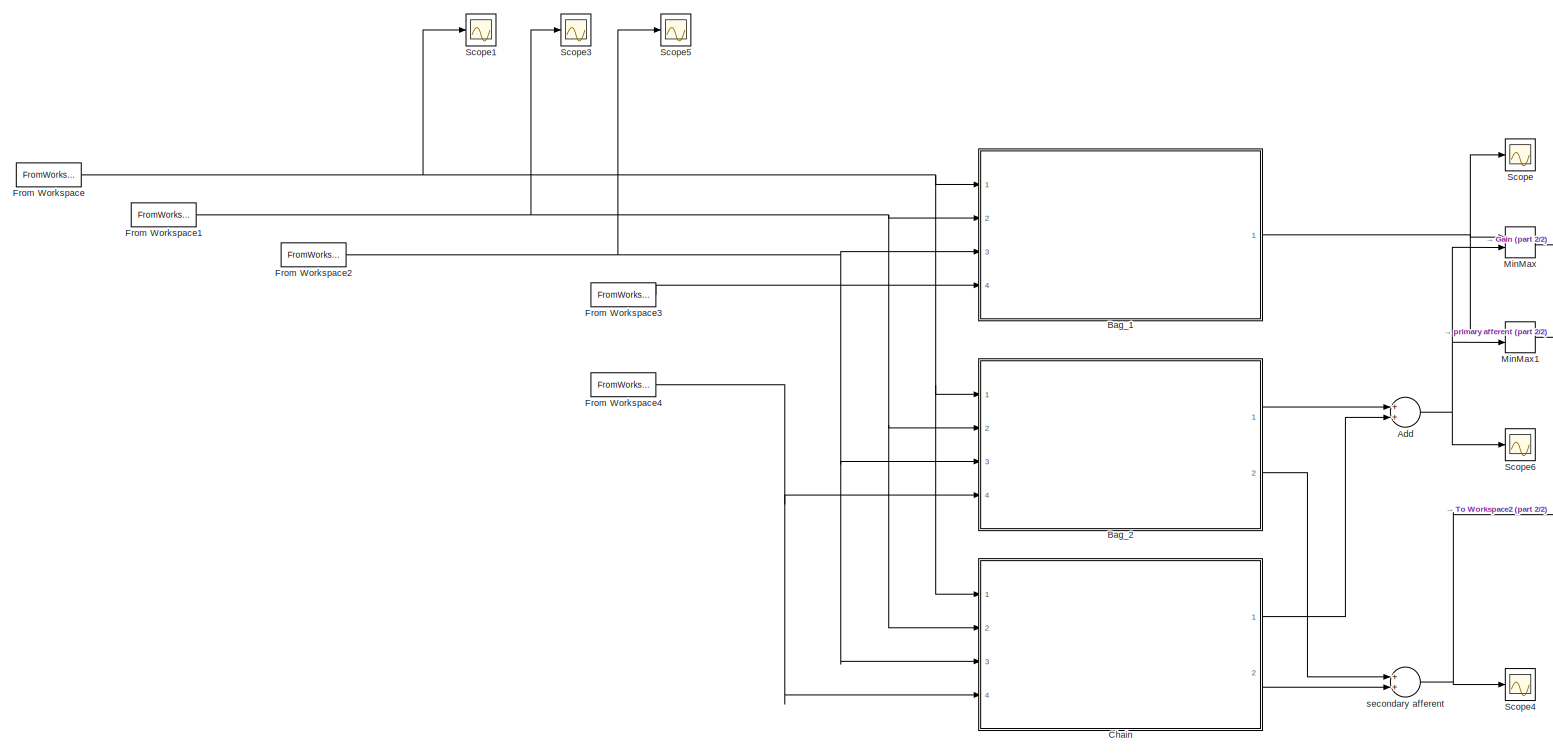
[diagram: root canvas - part 1/2, most of the canvas]
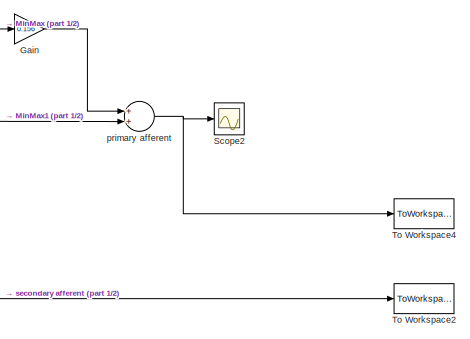
[diagram: root canvas - part 2/2, middle right region]
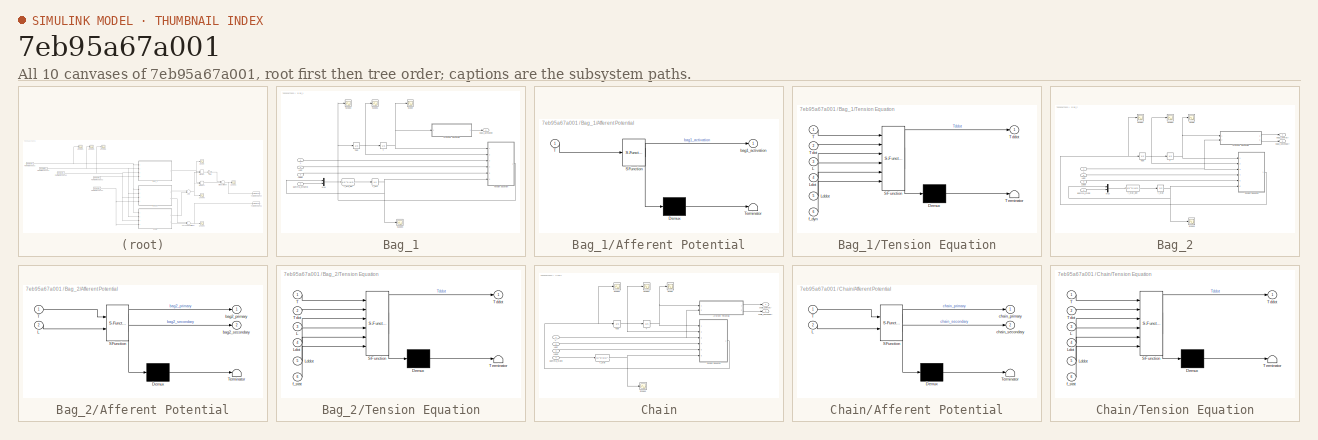
[diagram: thumbnail index - all 10 canvases of the model, root first then tree order]
MODEL slx_7eb95a67a001
KIND model
CONFIG AbsTol = auto
CONFIG EnableMultiTasking = on
CONFIG FixedStep = 0.001
CONFIG MaxStep = auto
CONFIG MinStep = auto
CONFIG RelTol = 1e-3
CONFIG SampleTimeConstraint = Unconstrained
CONFIG Solver = FixedStepAuto
CONFIG SolverName = FixedStepAuto
CONFIG StartTime = 0
CONFIG StopTime = 10
BLOCK [Sum] Add
  InputSameDT = off
  OutDataTypeStr = Inherit: Inherit via internal rule
  Ports = [2, 1]
  SaturateOnIntegerOverflow = off
BLOCK [SubSystem] Bag_1
  Ports = [4, 1]
  RequestExecContextInheritance = off
  Variant = off
BLOCK [SubSystem] Bag_1/Afferent Potential
  ErrorFcn = Stateflow.Translate.translate
  PermitHierarchicalResolution = ExplicitOnly
  Ports = [1, 1]
  RequestExecContextInheritance = off
  SFBlockType = MATLAB Function
  TreatAsAtomicUnit = on
  Variant = off
BLOCK [Demux] Bag_1/Afferent Potential/ Demux 
  Outputs = 1
  Ports = [1, 1]
BLOCK [S-Function] Bag_1/Afferent Potential/ SFunction 
  EnableBusSupport = on
  FunctionName = sf_sfun
  PortCounts = [1 2]
  Ports = [1, 2]
  SFcnIsStateOwnerBlock = off
  SFunctionDeploymentMode = off
  Tag = Stateflow S-Function spindle_model 1
BLOCK [Terminator] Bag_1/Afferent Potential/ Terminator 
BLOCK [Inport] Bag_1/Afferent Potential/T
  IconDisplay = Port number
BLOCK [Outport] Bag_1/Afferent Potential/bag1_activation
  IconDisplay = Port number
BLOCK [Inport] Bag_1/L
  IconDisplay = Port number
BLOCK [Inport] Bag_1/Lddot
  IconDisplay = Port number
  Port = 3
BLOCK [Inport] Bag_1/Ldot
  IconDisplay = Port number
  Port = 2
BLOCK [Mux] Bag_1/Mux
  DisplayOption = bar
  Inputs = 2
  Ports = [2, 1]
BLOCK [Scope] Bag_1/Scope
  NumInputPorts = 1
  Ports = [1]
  ScopeSpecificationString = Simulink.scopes.TimeScopeBlockCfg('CurrentConfiguration', extmgr.ConfigurationSet(extmgr.Configuration('Core','General UI',true),extmgr.Configuration('Core','Source UI',true),extmgr.Configuration('Sources','WiredSimulink',true,'DataLoggingVariableName','ScopeData3'),extmgr.Configuration('Visuals','Time Domain',true,'SerializedDisplays',{struct('MinYLimReal','-0.0141','MaxYLimReal','0.12692','YLabe...<+1385ch>
BLOCK [Scope] Bag_1/Scope1
  NumInputPorts = 1
  Ports = [1]
  ScopeSpecificationString = Simulink.scopes.TimeScopeBlockCfg('CurrentConfiguration', extmgr.ConfigurationSet(extmgr.Configuration('Core','General UI',true),extmgr.Configuration('Core','Source UI',true),extmgr.Configuration('Sources','WiredSimulink',true,'DataLoggingVariableName','ScopeData1'),extmgr.Configuration('Visuals','Time Domain',true,'SerializedDisplays',{struct('MinYLimReal','-0.1269','MaxYLimReal','0.13059','YLabe...<+1407ch>
BLOCK [Scope] Bag_1/Scope2
  NumInputPorts = 1
  Ports = [1]
  ScopeSpecificationString = Simulink.scopes.TimeScopeBlockCfg('CurrentConfiguration', extmgr.ConfigurationSet(extmgr.Configuration('Core','General UI',true),extmgr.Configuration('Core','Source UI',true),extmgr.Configuration('Sources','WiredSimulink',true,'DataLoggingVariableName','ScopeData2'),extmgr.Configuration('Visuals','Time Domain',true,'SerializedDisplays',{struct('MinYLimReal','-1592.22082','MaxYLimReal','1591.12849'...<+1443ch>
BLOCK [Scope] Bag_1/Scope3
  NumInputPorts = 1
  Ports = [1]
  ScopeSpecificationString = Simulink.scopes.TimeScopeBlockCfg('CurrentConfiguration', extmgr.ConfigurationSet(extmgr.Configuration('Core','General UI',true),extmgr.Configuration('Core','Source UI',true),extmgr.Configuration('Sources','WiredSimulink',true,'DataLoggingVariableName','ScopeData1'),extmgr.Configuration('Visuals','Time Domain',true,'SerializedDisplays',{struct('MinYLimReal','-0.11172','MaxYLimReal','1.00548','YLab...<+1393ch>
BLOCK [Integrator] Bag_1/T
  Ports = [1, 1]
BLOCK [Integrator] Bag_1/Tdot
  Ports = [1, 1]
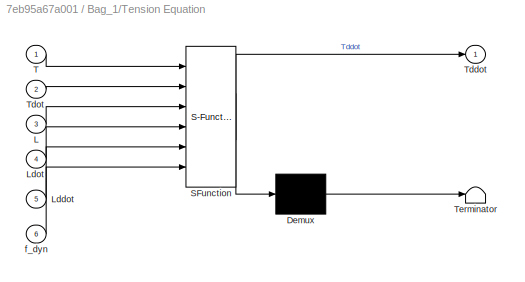
BLOCK [SubSystem] Bag_1/Tension Equation
  ErrorFcn = Stateflow.Translate.translate
  PermitHierarchicalResolution = ExplicitOnly
  Ports = [6, 1]
  RequestExecContextInheritance = off
  SFBlockType = MATLAB Function
  TreatAsAtomicUnit = on
  Variant = off
BLOCK [Demux] Bag_1/Tension Equation/ Demux 
  Outputs = 1
  Ports = [1, 1]
BLOCK [S-Function] Bag_1/Tension Equation/ SFunction 
  EnableBusSupport = on
  FunctionName = sf_sfun
  PortCounts = [6 2]
  Ports = [6, 2]
  SFcnIsStateOwnerBlock = off
  SFunctionDeploymentMode = off
  Tag = Stateflow S-Function spindle_model 2
BLOCK [Terminator] Bag_1/Tension Equation/ Terminator 
BLOCK [Inport] Bag_1/Tension Equation/L
  IconDisplay = Port number
  Port = 3
BLOCK [Inport] Bag_1/Tension Equation/Lddot
  IconDisplay = Port number
  Port = 5
BLOCK [Inport] Bag_1/Tension Equation/Ldot
  IconDisplay = Port number
  Port = 4
BLOCK [Inport] Bag_1/Tension Equation/T
  IconDisplay = Port number
BLOCK [Outport] Bag_1/Tension Equation/Tddot
  IconDisplay = Port number
BLOCK [Inport] Bag_1/Tension Equation/Tdot
  IconDisplay = Port number
  Port = 2
BLOCK [Inport] Bag_1/Tension Equation/f_dyn
  IconDisplay = Port number
  Port = 6
BLOCK [Outport] Bag_1/bag1_activation
  IconDisplay = Port number
BLOCK [Integrator] Bag_1/f_dyn
  Ports = [1, 1]
BLOCK [Fcn] Bag_1/f_dyn_dot
  Expr = (u(2)^2/(u(2)^2+60^2) - u(1))/0.149
BLOCK [Inport] Bag_1/gamma_dynamic
  IconDisplay = Port number
  Port = 4
BLOCK [SubSystem] Bag_2
  Ports = [4, 2]
  RequestExecContextInheritance = off
  Variant = off
BLOCK [SubSystem] Bag_2/Afferent Potential
  ErrorFcn = Stateflow.Translate.translate
  PermitHierarchicalResolution = ExplicitOnly
  Ports = [2, 2]
  RequestExecContextInheritance = off
  SFBlockType = MATLAB Function
  TreatAsAtomicUnit = on
  Variant = off
BLOCK [Demux] Bag_2/Afferent Potential/ Demux 
  Outputs = 1
  Ports = [1, 1]
BLOCK [S-Function] Bag_2/Afferent Potential/ SFunction 
  EnableBusSupport = on
  FunctionName = sf_sfun
  PortCounts = [2 3]
  Ports = [2, 3]
  SFcnIsStateOwnerBlock = off
  SFunctionDeploymentMode = off
  Tag = Stateflow S-Function spindle_model 3
BLOCK [Terminator] Bag_2/Afferent Potential/ Terminator 
BLOCK [Inport] Bag_2/Afferent Potential/L
  IconDisplay = Port number
  Port = 2
BLOCK [Inport] Bag_2/Afferent Potential/T
  IconDisplay = Port number
BLOCK [Outport] Bag_2/Afferent Potential/bag2_primary
  IconDisplay = Port number
BLOCK [Outport] Bag_2/Afferent Potential/bag2_secondary
  IconDisplay = Port number
  Port = 2
BLOCK [Inport] Bag_2/L
  IconDisplay = Port number
BLOCK [Inport] Bag_2/Lddot
  IconDisplay = Port number
  Port = 3
BLOCK [Inport] Bag_2/Ldot
  IconDisplay = Port number
  Port = 2
BLOCK [Mux] Bag_2/Mux
  DisplayOption = bar
  Inputs = 2
  Ports = [2, 1]
BLOCK [Scope] Bag_2/Scope
  NumInputPorts = 1
  Ports = [1]
  ScopeSpecificationString = Simulink.scopes.TimeScopeBlockCfg('CurrentConfiguration', extmgr.ConfigurationSet(extmgr.Configuration('Core','General UI',true),extmgr.Configuration('Core','Source UI',true),extmgr.Configuration('Sources','WiredSimulink',true,'DataLoggingVariableName','ScopeData3'),extmgr.Configuration('Visuals','Time Domain',true,'SerializedDisplays',{struct('MinYLimReal','0.07054','MaxYLimReal','0.09193','YLabe...<+1433ch>
BLOCK [Scope] Bag_2/Scope1
  NumInputPorts = 1
  Ports = [1]
  ScopeSpecificationString = Simulink.scopes.TimeScopeBlockCfg('CurrentConfiguration', extmgr.ConfigurationSet(extmgr.Configuration('Core','General UI',true),extmgr.Configuration('Core','Source UI',true),extmgr.Configuration('Sources','WiredSimulink',true,'DataLoggingVariableName','ScopeData4'),extmgr.Configuration('Visuals','Time Domain',true,'SerializedDisplays',{struct('MinYLimReal','-141.9745','MaxYLimReal','59.31914','YL...<+1402ch>
BLOCK [Scope] Bag_2/Scope2
  NumInputPorts = 1
  Ports = [1]
  ScopeSpecificationString = Simulink.scopes.TimeScopeBlockCfg('CurrentConfiguration', extmgr.ConfigurationSet(extmgr.Configuration('Core','General UI',true),extmgr.Configuration('Core','Source UI',true),extmgr.Configuration('Sources','WiredSimulink',true,'DataLoggingVariableName','ScopeData5'),extmgr.Configuration('Visuals','Time Domain',true,'SerializedDisplays',{struct('MinYLimReal','-0.39242','MaxYLimReal','3.43233','YLab...<+1363ch>
BLOCK [Scope] Bag_2/Scope3
  NumInputPorts = 1
  Ports = [1]
  ScopeSpecificationString = Simulink.scopes.TimeScopeBlockCfg('CurrentConfiguration', extmgr.ConfigurationSet(extmgr.Configuration('Core','General UI',true),extmgr.Configuration('Core','Source UI',true),extmgr.Configuration('Sources','WiredSimulink',true,'DataLoggingVariableName','ScopeData9'),extmgr.Configuration('Visuals','Time Domain',true,'SerializedDisplays',{struct('MinYLimReal','-0.089','MaxYLimReal','0.801','YLabelRe...<+1428ch>
BLOCK [Integrator] Bag_2/T
  Ports = [1, 1]
BLOCK [Integrator] Bag_2/Tdot
  Ports = [1, 1]
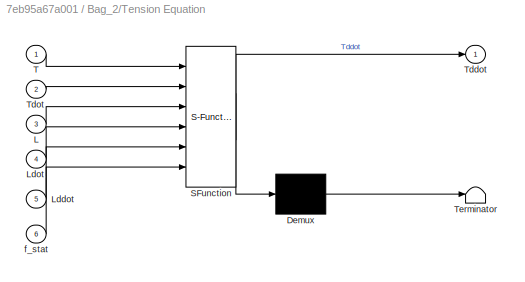
BLOCK [SubSystem] Bag_2/Tension Equation
  ErrorFcn = Stateflow.Translate.translate
  PermitHierarchicalResolution = ExplicitOnly
  Ports = [6, 1]
  RequestExecContextInheritance = off
  SFBlockType = MATLAB Function
  TreatAsAtomicUnit = on
  Variant = off
BLOCK [Demux] Bag_2/Tension Equation/ Demux 
  Outputs = 1
  Ports = [1, 1]
BLOCK [S-Function] Bag_2/Tension Equation/ SFunction 
  EnableBusSupport = on
  FunctionName = sf_sfun
  PortCounts = [6 2]
  Ports = [6, 2]
  SFcnIsStateOwnerBlock = off
  SFunctionDeploymentMode = off
  Tag = Stateflow S-Function spindle_model 4
BLOCK [Terminator] Bag_2/Tension Equation/ Terminator 
BLOCK [Inport] Bag_2/Tension Equation/L
  IconDisplay = Port number
  Port = 3
BLOCK [Inport] Bag_2/Tension Equation/Lddot
  IconDisplay = Port number
  Port = 5
BLOCK [Inport] Bag_2/Tension Equation/Ldot
  IconDisplay = Port number
  Port = 4
BLOCK [Inport] Bag_2/Tension Equation/T
  IconDisplay = Port number
BLOCK [Outport] Bag_2/Tension Equation/Tddot
  IconDisplay = Port number
BLOCK [Inport] Bag_2/Tension Equation/Tdot
  IconDisplay = Port number
  Port = 2
BLOCK [Inport] Bag_2/Tension Equation/f_stat
  IconDisplay = Port number
  Port = 6
BLOCK [Outport] Bag_2/bag2_primary
  IconDisplay = Port number
BLOCK [Outport] Bag_2/bag2_secondary
  IconDisplay = Port number
  Port = 2
BLOCK [Integrator] Bag_2/f_stat
  Ports = [1, 1]
BLOCK [Fcn] Bag_2/f_stat_dot
  Expr = (u(2)^2/(u(2)^2+60^2) - u(1))/0.205
BLOCK [Inport] Bag_2/gamma_static
  IconDisplay = Port number
  Port = 4
BLOCK [SubSystem] Chain
  Ports = [4, 2]
  RequestExecContextInheritance = off
  Variant = off
BLOCK [SubSystem] Chain/Afferent Potential
  ErrorFcn = Stateflow.Translate.translate
  PermitHierarchicalResolution = ExplicitOnly
  Ports = [2, 2]
  RequestExecContextInheritance = off
  SFBlockType = MATLAB Function
  TreatAsAtomicUnit = on
  Variant = off
BLOCK [Demux] Chain/Afferent Potential/ Demux 
  Outputs = 1
  Ports = [1, 1]
BLOCK [S-Function] Chain/Afferent Potential/ SFunction 
  EnableBusSupport = on
  FunctionName = sf_sfun
  PortCounts = [2 3]
  Ports = [2, 3]
  SFcnIsStateOwnerBlock = off
  SFunctionDeploymentMode = off
  Tag = Stateflow S-Function spindle_model 5
BLOCK [Terminator] Chain/Afferent Potential/ Terminator 
BLOCK [Inport] Chain/Afferent Potential/L
  IconDisplay = Port number
  Port = 2
BLOCK [Inport] Chain/Afferent Potential/T
  IconDisplay = Port number
BLOCK [Outport] Chain/Afferent Potential/chain_primary
  IconDisplay = Port number
BLOCK [Outport] Chain/Afferent Potential/chain_secondary
  IconDisplay = Port number
  Port = 2
BLOCK [Inport] Chain/L
  IconDisplay = Port number
BLOCK [Inport] Chain/Lddot
  IconDisplay = Port number
  Port = 3
BLOCK [Inport] Chain/Ldot
  IconDisplay = Port number
  Port = 2
BLOCK [Scope] Chain/Scope
  NumInputPorts = 1
  Ports = [1]
  ScopeSpecificationString = Simulink.scopes.TimeScopeBlockCfg('CurrentConfiguration', extmgr.ConfigurationSet(extmgr.Configuration('Core','General UI',true),extmgr.Configuration('Core','Source UI',true),extmgr.Configuration('Sources','WiredSimulink',true,'DataLoggingVariableName','ScopeData6'),extmgr.Configuration('Visuals','Time Domain',true,'SerializedDisplays',{struct('MinYLimReal','-0.01285','MaxYLimReal','0.11563','YLab...<+1360ch>
BLOCK [Scope] Chain/Scope1
  NumInputPorts = 1
  Ports = [1]
  ScopeSpecificationString = Simulink.scopes.TimeScopeBlockCfg('CurrentConfiguration', extmgr.ConfigurationSet(extmgr.Configuration('Core','General UI',true),extmgr.Configuration('Core','Source UI',true),extmgr.Configuration('Sources','WiredSimulink',true,'DataLoggingVariableName','ScopeData7'),extmgr.Configuration('Visuals','Time Domain',true,'SerializedDisplays',{struct('MinYLimReal','-3220.47835','MaxYLimReal','4033.73453'...<+1397ch>
BLOCK [Scope] Chain/Scope2
  NumInputPorts = 1
  Ports = [1]
  ScopeSpecificationString = Simulink.scopes.TimeScopeBlockCfg('CurrentConfiguration', extmgr.ConfigurationSet(extmgr.Configuration('Core','General UI',true),extmgr.Configuration('Core','Source UI',true),extmgr.Configuration('Sources','WiredSimulink',true,'DataLoggingVariableName','ScopeData8'),extmgr.Configuration('Visuals','Time Domain',true,'SerializedDisplays',{struct('MinYLimReal','-7.67145','MaxYLimReal','13.97779','YLa...<+1367ch>
BLOCK [Scope] Chain/Scope3
  NumInputPorts = 1
  Ports = [1]
  ScopeSpecificationString = Simulink.scopes.TimeScopeBlockCfg('CurrentConfiguration', extmgr.ConfigurationSet(extmgr.Configuration('Core','General UI',true),extmgr.Configuration('Core','Source UI',true),extmgr.Configuration('Sources','WiredSimulink',true,'DataLoggingVariableName','ScopeData10'),extmgr.Configuration('Visuals','Time Domain',true,'SerializedDisplays',{struct('MinYLimReal','0.24002','MaxYLimReal','0.55889','YLab...<+1364ch>
BLOCK [Integrator] Chain/T
  Ports = [1, 1]
BLOCK [Integrator] Chain/Tdot
  Ports = [1, 1]
BLOCK [SubSystem] Chain/Tension Equation
  ErrorFcn = Stateflow.Translate.translate
  PermitHierarchicalResolution = ExplicitOnly
  Ports = [6, 1]
  RequestExecContextInheritance = off
  SFBlockType = MATLAB Function
  TreatAsAtomicUnit = on
  Variant = off
BLOCK [Demux] Chain/Tension Equation/ Demux 
  Outputs = 1
  Ports = [1, 1]
BLOCK [S-Function] Chain/Tension Equation/ SFunction 
  EnableBusSupport = on
  FunctionName = sf_sfun
  PortCounts = [6 2]
  Ports = [6, 2]
  SFcnIsStateOwnerBlock = off
  SFunctionDeploymentMode = off
  Tag = Stateflow S-Function spindle_model 6
BLOCK [Terminator] Chain/Tension Equation/ Terminator 
BLOCK [Inport] Chain/Tension Equation/L
  IconDisplay = Port number
  Port = 3
BLOCK [Inport] Chain/Tension Equation/Lddot
  IconDisplay = Port number
  Port = 5
BLOCK [Inport] Chain/Tension Equation/Ldot
  IconDisplay = Port number
  Port = 4
BLOCK [Inport] Chain/Tension Equation/T
  IconDisplay = Port number
BLOCK [Outport] Chain/Tension Equation/Tddot
  IconDisplay = Port number
BLOCK [Inport] Chain/Tension Equation/Tdot
  IconDisplay = Port number
  Port = 2
BLOCK [Inport] Chain/Tension Equation/f_stat
  IconDisplay = Port number
  Port = 6
BLOCK [Outport] Chain/chain_primary
  IconDisplay = Port number
BLOCK [Outport] Chain/chain_secondary
  IconDisplay = Port number
  Port = 2
BLOCK [Fcn] Chain/f_stat
  Expr = u(1)^2/(u(1)^2+90^2)
BLOCK [Inport] Chain/gamma_static
  IconDisplay = Port number
  Port = 4
BLOCK [FromWorkspace] From Workspace
  SampleTime = 0
  VariableName = L
  ZeroCross = on
BLOCK [FromWorkspace] From Workspace1
  SampleTime = 0
  VariableName = Ldot
  ZeroCross = on
BLOCK [FromWorkspace] From Workspace2
  SampleTime = 0
  VariableName = Lddot
  ZeroCross = on
BLOCK [FromWorkspace] From Workspace3
  SampleTime = 0
  VariableName = gamma_dyn
  ZeroCross = on
BLOCK [FromWorkspace] From Workspace4
  SampleTime = 0
  VariableName = gamma_stat
  ZeroCross = on
BLOCK [Gain] Gain
  Gain = 0.156
  OutDataTypeStr = Inherit: Inherit via internal rule
  ParamDataTypeStr = Inherit: Inherit via internal rule
  SaturateOnIntegerOverflow = off
BLOCK [MinMax] MinMax
  InputSameDT = off
  Inputs = 2
  Ports = [2, 1]
  SaturateOnIntegerOverflow = off
BLOCK [MinMax] MinMax1
  Function = max
  InputSameDT = off
  Inputs = 2
  Ports = [2, 1]
  SaturateOnIntegerOverflow = off
BLOCK [Scope] Scope
  NumInputPorts = 1
  Ports = [1]
  ScopeSpecificationString = Simulink.scopes.TimeScopeBlockCfg('CurrentConfiguration', extmgr.ConfigurationSet(extmgr.Configuration('Core','General UI',true),extmgr.Configuration('Core','Source UI',true),extmgr.Configuration('Sources','WiredSimulink',true,'DataLoggingVariableName','ScopeData1'),extmgr.Configuration('Visuals','Time Domain',true,'SerializedDisplays',{struct('MinYLimReal','-72.95088','MaxYLimReal','196.55792','Y...<+1403ch>
BLOCK [Scope] Scope1
  NumInputPorts = 1
  Ports = [1]
  ScopeSpecificationString = Simulink.scopes.TimeScopeBlockCfg('CurrentConfiguration', extmgr.ConfigurationSet(extmgr.Configuration('Core','General UI',true),extmgr.Configuration('Core','Source UI',true),extmgr.Configuration('Sources','WiredSimulink',true,'DataLoggingVariableName','ScopeData2'),extmgr.Configuration('Visuals','Time Domain',true,'SerializedDisplays',{struct('MinYLimReal','0.7875','MaxYLimReal','1.1125','YLabelR...<+1363ch>
BLOCK [Scope] Scope2
  NumInputPorts = 1
  Ports = [1]
  ScopeSpecificationString = Simulink.scopes.TimeScopeBlockCfg('CurrentConfiguration', extmgr.ConfigurationSet(extmgr.Configuration('Core','General UI',true),extmgr.Configuration('Core','Source UI',true),extmgr.Configuration('Sources','WiredSimulink',true,'DataLoggingVariableName','ScopeData5'),extmgr.Configuration('Visuals','Time Domain',true,'SerializedDisplays',{struct('MinYLimReal','-82.77474','MaxYLimReal','213.21262','Y...<+1412ch>
BLOCK [Scope] Scope3
  NumInputPorts = 1
  Ports = [1]
  ScopeSpecificationString = Simulink.scopes.TimeScopeBlockCfg('CurrentConfiguration', extmgr.ConfigurationSet(extmgr.Configuration('Core','General UI',true),extmgr.Configuration('Core','Source UI',true),extmgr.Configuration('Sources','WiredSimulink',true,'DataLoggingVariableName','ScopeData3'),extmgr.Configuration('Visuals','Time Domain',true,'SerializedDisplays',{struct('MinYLimReal','-1.02102','MaxYLimReal','1.02102','YLab...<+1374ch>
BLOCK [Scope] Scope4
  NumInputPorts = 1
  Ports = [1]
  ScopeSpecificationString = Simulink.scopes.TimeScopeBlockCfg('CurrentConfiguration', extmgr.ConfigurationSet(extmgr.Configuration('Core','General UI',true),extmgr.Configuration('Core','Source UI',true),extmgr.Configuration('Sources','WiredSimulink',true,'DataLoggingVariableName','ScopeData6'),extmgr.Configuration('Visuals','Time Domain',true,'SerializedDisplays',{struct('MinYLimReal','-70.49475','MaxYLimReal','135.10667','Y...<+1387ch>
BLOCK [Scope] Scope5
  NumInputPorts = 1
  Ports = [1]
  ScopeSpecificationString = Simulink.scopes.TimeScopeBlockCfg('CurrentConfiguration', extmgr.ConfigurationSet(extmgr.Configuration('Core','General UI',true),extmgr.Configuration('Core','Source UI',true),extmgr.Configuration('Sources','WiredSimulink',true,'DataLoggingVariableName','ScopeData4'),extmgr.Configuration('Visuals','Time Domain',true,'SerializedDisplays',{struct('MinYLimReal','-0.01564','MaxYLimReal','0.01564','YLab...<+1374ch>
BLOCK [Scope] Scope6
  NumInputPorts = 1
  Ports = [1]
  ScopeSpecificationString = Simulink.scopes.TimeScopeBlockCfg('CurrentConfiguration', extmgr.ConfigurationSet(extmgr.Configuration('Core','General UI',true),extmgr.Configuration('Core','Source UI',true),extmgr.Configuration('Sources','WiredSimulink',true,'DataLoggingVariableName','ScopeData2'),extmgr.Configuration('Visuals','Time Domain',true,'SerializedDisplays',{struct('MinYLimReal','-68.01432','MaxYLimReal','152.12885','Y...<+1401ch>
BLOCK [ToWorkspace] To Workspace2
  FixptAsFi = on
  MaxDataPoints = inf
  Ports = [1]
  SampleTime = -1
  Save2DSignal = 3-D array (concatenate along third dimension)
  SaveFormat = Timeseries
  VariableName = secondary_afferent
BLOCK [ToWorkspace] To Workspace4
  FixptAsFi = on
  MaxDataPoints = inf
  Ports = [1]
  SampleTime = -1
  Save2DSignal = 3-D array (concatenate along third dimension)
  SaveFormat = Timeseries
  VariableName = primary_afferent
BLOCK [Sum] primary afferent
  InputSameDT = off
  OutDataTypeStr = Inherit: Inherit via internal rule
  Ports = [2, 1]
  SaturateOnIntegerOverflow = off
BLOCK [Sum] secondary afferent
  InputSameDT = off
  OutDataTypeStr = Inherit: Inherit via internal rule
  Ports = [2, 1]
  SaturateOnIntegerOverflow = off
NET Add:1 -> MinMax1:2, MinMax:2, Scope6:1
LINE Bag_1/Afferent Potential:1 -> Bag_1/bag1_activation:1
LINE Bag_1/L:1 -> Bag_1/Tension Equation:3
LINE Bag_1/Lddot:1 -> Bag_1/Tension Equation:5
LINE Bag_1/Ldot:1 -> Bag_1/Tension Equation:4
LINE Bag_1/Mux:1 -> Bag_1/f_dyn_dot:1
NET Bag_1/T:1 -> Bag_1/Afferent Potential:1, Bag_1/Scope:1, Bag_1/Tension Equation:1
NET Bag_1/Tdot:1 -> Bag_1/Scope1:1, Bag_1/T:1, Bag_1/Tension Equation:2
NET Bag_1/Tension Equation:1 -> Bag_1/Scope2:1, Bag_1/Tdot:1
NET Bag_1/f_dyn:1 -> Bag_1/Mux:1, Bag_1/Scope3:1, Bag_1/Tension Equation:6
LINE Bag_1/f_dyn_dot:1 -> Bag_1/f_dyn:1
LINE Bag_1/gamma_dynamic:1 -> Bag_1/Mux:2
NET Bag_1:1 -> MinMax1:1, MinMax:1, Scope:1
LINE Bag_2/Afferent Potential:1 -> Bag_2/bag2_primary:1
LINE Bag_2/Afferent Potential:2 -> Bag_2/bag2_secondary:1
NET Bag_2/L:1 -> Bag_2/Afferent Potential:2, Bag_2/Tension Equation:3
LINE Bag_2/Lddot:1 -> Bag_2/Tension Equation:5
LINE Bag_2/Ldot:1 -> Bag_2/Tension Equation:4
LINE Bag_2/Mux:1 -> Bag_2/f_stat_dot:1
NET Bag_2/T:1 -> Bag_2/Afferent Potential:1, Bag_2/Scope:1, Bag_2/Tension Equation:1
NET Bag_2/Tdot:1 -> Bag_2/Scope2:1, Bag_2/T:1, Bag_2/Tension Equation:2
NET Bag_2/Tension Equation:1 -> Bag_2/Scope1:1, Bag_2/Tdot:1
NET Bag_2/f_stat:1 -> Bag_2/Mux:1, Bag_2/Scope3:1, Bag_2/Tension Equation:6
LINE Bag_2/f_stat_dot:1 -> Bag_2/f_stat:1
LINE Bag_2/gamma_static:1 -> Bag_2/Mux:2
LINE Bag_2:1 -> Add:1
LINE Bag_2:2 -> secondary afferent:1
LINE Chain/Afferent Potential:1 -> Chain/chain_primary:1
LINE Chain/Afferent Potential:2 -> Chain/chain_secondary:1
NET Chain/L:1 -> Chain/Afferent Potential:2, Chain/Tension Equation:3
LINE Chain/Lddot:1 -> Chain/Tension Equation:5
LINE Chain/Ldot:1 -> Chain/Tension Equation:4
NET Chain/T:1 -> Chain/Afferent Potential:1, Chain/Scope:1, Chain/Tension Equation:1
NET Chain/Tdot:1 -> Chain/Scope2:1, Chain/T:1, Chain/Tension Equation:2
NET Chain/Tension Equation:1 -> Chain/Scope1:1, Chain/Tdot:1
NET Chain/f_stat:1 -> Chain/Scope3:1, Chain/Tension Equation:6
LINE Chain/gamma_static:1 -> Chain/f_stat:1
LINE Chain:1 -> Add:2
LINE Chain:2 -> secondary afferent:2
NET From Workspace1:1 -> Bag_1:2, Bag_2:2, Chain:2, Scope3:1
NET From Workspace2:1 -> Bag_1:3, Bag_2:3, Chain:3, Scope5:1
LINE From Workspace3:1 -> Bag_1:4
NET From Workspace4:1 -> Bag_2:4, Chain:4
NET From Workspace:1 -> Bag_1:1, Bag_2:1, Chain:1, Scope1:1
LINE Gain:1 -> primary afferent:1
LINE MinMax1:1 -> primary afferent:2
LINE MinMax:1 -> Gain:1
NET primary afferent:1 -> Scope2:1, To Workspace4:1
NET secondary afferent:1 -> Scope4:1, To Workspace2:1
note: NET lines group one-source signal fan-out (src -> all destinations, sorted); 1:1 wires keep LINE
CHART Bag_1/Afferent Potential states=1 transitions=1
  STATE_LABEL 'eML_blk_kernel()'
  STATE_LABEL 'SCRIPT:\nfunction bag1_activation = activation(T)\n\nKsr = 10.4649;\nL0_sr = 0.04;\nG = 20000;\nLN_sr = 0.0423;\n\nbag1_activation = G*(T/Ksr + L0_sr - LN_sr);'
CHART Bag_1/Tension Equation states=1 transitions=1
  STATE_LABEL 'eML_blk_kernel()'
  STATE_LABEL 'SCRIPT:\nfunction Tddot = Tddot(T,Tdot,L,Ldot,Lddot,f_dyn)\n\nKsr = 10.4649;\nKpr = 0.15;\nM = 0.0002;\nCL = 1;\nCS = 0.42;\na = 0.3;\nR = 0.46;\nL0_sr = 0.04;\nL0_pr = 0.76;\n\nbeta = 0.0605 + 0.2592*f_dyn;\ngamma = 0.0289*f_dyn;\n\nif Ldot-Tdot/Ksr>0\n\tC = CL;\nelse\n\tC = CS;\nend\n\nTddot = M*Lddot + gamma - T;\nTddot = Tddot + Kpr*(L - L0_sr - T/Ksr - L0_pr);\nTddot = Tddot + C*beta*sign(Ldot - Tdot/Ksr)*abs(Ldot - T...<+50ch>'
CHART Bag_2/Afferent Potential states=1 transitions=1
  STATE_LABEL 'eML_blk_kernel()'
  STATE_LABEL 'SCRIPT:\nfunction [bag2_primary,bag2_secondary] = activation(T,L)\n\nKsr = 10.4649;\nL0_sr = 0.04;\nL0_pr = 0.76;\nG1 = 10000;\nG2 = 7250;\nLN_sr = 0.0423;\nLN_pr = 0.89;\nX = 0.7;\nLsec = 0.04;\n\nbag2_primary = G1*(T/Ksr + L0_sr - LN_sr);\nbag2_secondary = G2*(X*Lsec/L0_sr*(T/Ksr + L0_sr - LN_sr) + (1-X)*Lsec/L0_pr*(L - T/Ksr - L0_sr - LN_pr));'
CHART Bag_2/Tension Equation states=1 transitions=1
  STATE_LABEL 'eML_blk_kernel()'
  STATE_LABEL 'SCRIPT:\nfunction Tddot = Tddot(T,Tdot,L,Ldot,Lddot,f_stat)\n\nKsr = 10.4649;\nKpr = 0.15;\nM = 0.0002;\nCL = 1;\nCS = 0.42;\na = 0.3;\nR = 0.46;\nL0_sr = 0.04;\nL0_pr = 0.76;\n\nbeta = 0.0822 - 0.0460*f_stat;\ngamma = 0.0636*f_stat;\n\nif Ldot-Tdot/Ksr>0\n\tC = CL;\nelse\n\tC = CS;\nend\n\nTddot = M*Lddot + gamma - T;\nTddot = Tddot + Kpr*(L - L0_sr - T/Ksr - L0_pr);\nTddot = Tddot + C*beta*sign(Ldot - Tdot/Ksr)*abs(Ldot ...<+53ch>'
CHART Chain/Afferent Potential states=1 transitions=1
  STATE_LABEL 'eML_blk_kernel()'
  STATE_LABEL 'SCRIPT:\nfunction [chain_primary,chain_secondary] = activation(T,L)\n\nKsr = 10.4649;\nL0_sr = 0.04;\nL0_pr = 0.76;\nG1 = 10000;\nG2 = 7250;\nLN_sr = 0.0423;\nLN_pr = 0.89;\nX = 0.7;\nLsec = 0.04;\n\nchain_primary = G1*(T/Ksr + L0_sr - LN_sr);\nchain_secondary = G2*(X*Lsec/L0_sr*(T/Ksr + L0_sr - LN_sr) + (1-X)*Lsec/L0_pr*(L - T/Ksr - L0_sr - LN_pr));'
CHART Chain/Tension Equation states=1 transitions=1
  STATE_LABEL 'eML_blk_kernel()'
  STATE_LABEL 'SCRIPT:\nfunction Tddot = Tddot(T,Tdot,L,Ldot,Lddot,f_stat)\n\nKsr = 10.4649;\nKpr = 0.15;\nM = 0.0002;\nCL = 1;\nCS = 0.42;\na = 0.3;\nR = 0.46;\nL0_sr = 0.04;\nL0_pr = 0.76;\n\nbeta = 0.0822 - 0.0690*f_stat;\ngamma = 0.0954*f_stat;\n\nif Ldot-Tdot/Ksr>0\n\tC = CL;\nelse\n\tC = CS;\nend\n\nTddot = M*Lddot + gamma - T;\nTddot = Tddot + Kpr*(L - L0_sr - T/Ksr - L0_pr);\nTddot = Tddot + C*beta*sign(Ldot - Tdot/Ksr)*abs(Ldot ...<+53ch>'
